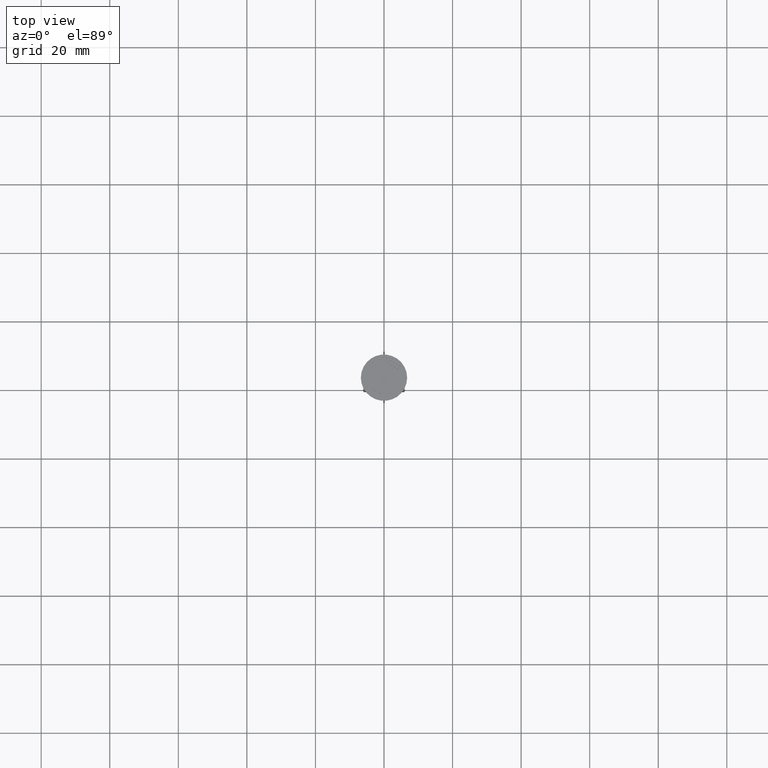
[diagram: clean part render]
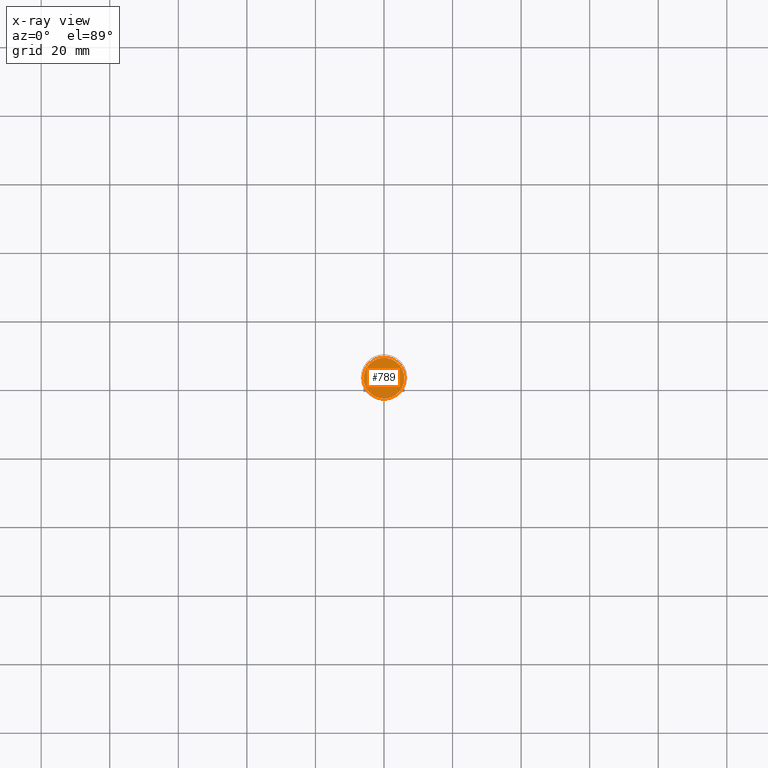
[diagram: x-ray — body ghosted, one internal face saturated and labeled with its STEP entity id]
A machine part, top view, then the same camera in x-ray: the body is ghosted and one INTERNAL B-rep face — a face not visible from any outside direction — is saturated and labeled: STEP entity #789.
In plain terms, the highlighted planar face has unit normal (0, 0, -1).
Its self-contained STEP definition (entity closure, byte-faithful):
#391 = AXIS2_PLACEMENT_3D ( 'NONE', #521, #1446, #711 ) ;
#441 = EDGE_LOOP ( 'NONE', ( #1970, #1638 ) ) ;
#449 = CARTESIAN_POINT ( 'NONE',  ( 0.000000000000000000, 0.000000000000000000, -10.50000000000000178 ) ) ;
#521 = CARTESIAN_POINT ( 'NONE',  ( 0.000000000000000000, 0.000000000000000000, -10.50000000000000178 ) ) ;
#692 = CARTESIAN_POINT ( 'NONE',  ( -5.950000000000002842, 0.000000000000000000, -10.50000000000000178 ) ) ;
#711 = DIRECTION ( 'NONE',  ( -1.000000000000000000, 0.000000000000000000, -0.000000000000000000 ) ) ;
#789 = ADVANCED_FACE ( 'NONE', ( #1765 ), #1076, .F. ) ;
#877 = CARTESIAN_POINT ( 'NONE',  ( 5.950000000000002842, 7.470345474798858237E-16, -10.50000000000000178 ) ) ;
#941 = AXIS2_PLACEMENT_3D ( 'NONE', #449, #977, #1180 ) ;
#977 = DIRECTION ( 'NONE',  ( -0.000000000000000000, -0.000000000000000000, 1.000000000000000000 ) ) ;
#1076 = PLANE ( 'NONE',  #391 ) ;
#1180 = DIRECTION ( 'NONE',  ( -1.000000000000000000, 0.000000000000000000, 0.000000000000000000 ) ) ;
#1248 = VERTEX_POINT ( 'NONE', #692 ) ;
#1258 = DIRECTION ( 'NONE',  ( -1.000000000000000000, 0.000000000000000000, 0.000000000000000000 ) ) ;
#1262 = VERTEX_POINT ( 'NONE', #877 ) ;
#1302 = EDGE_CURVE ( 'NONE', #1248, #1262, #1585, .T. ) ;
#1429 = CARTESIAN_POINT ( 'NONE',  ( 0.000000000000000000, 0.000000000000000000, -10.50000000000000178 ) ) ;
#1446 = DIRECTION ( 'NONE',  ( 0.000000000000000000, 0.000000000000000000, -1.000000000000000000 ) ) ;
#1525 = CIRCLE ( 'NONE', #941, 5.950000000000002842 ) ;
#1585 = CIRCLE ( 'NONE', #1913, 5.950000000000002842 ) ;
#1638 = ORIENTED_EDGE ( 'NONE', *, *, #1697, .T. ) ;
#1697 = EDGE_CURVE ( 'NONE', #1262, #1248, #1525, .T. ) ;
#1765 = FACE_OUTER_BOUND ( 'NONE', #441, .T. ) ;
#1913 = AXIS2_PLACEMENT_3D ( 'NONE', #1429, #2141, #1258 ) ;
#1970 = ORIENTED_EDGE ( 'NONE', *, *, #1302, .T. ) ;
#2141 = DIRECTION ( 'NONE',  ( -0.000000000000000000, -0.000000000000000000, 1.000000000000000000 ) ) ;